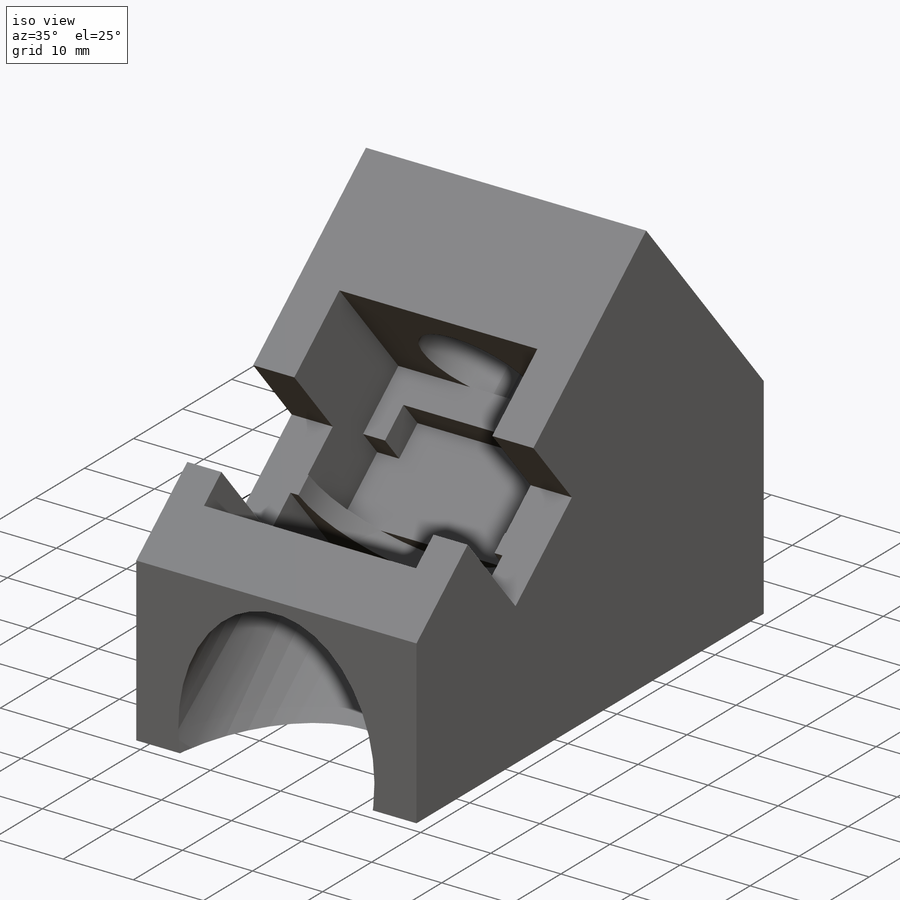
[diagram: iso view]
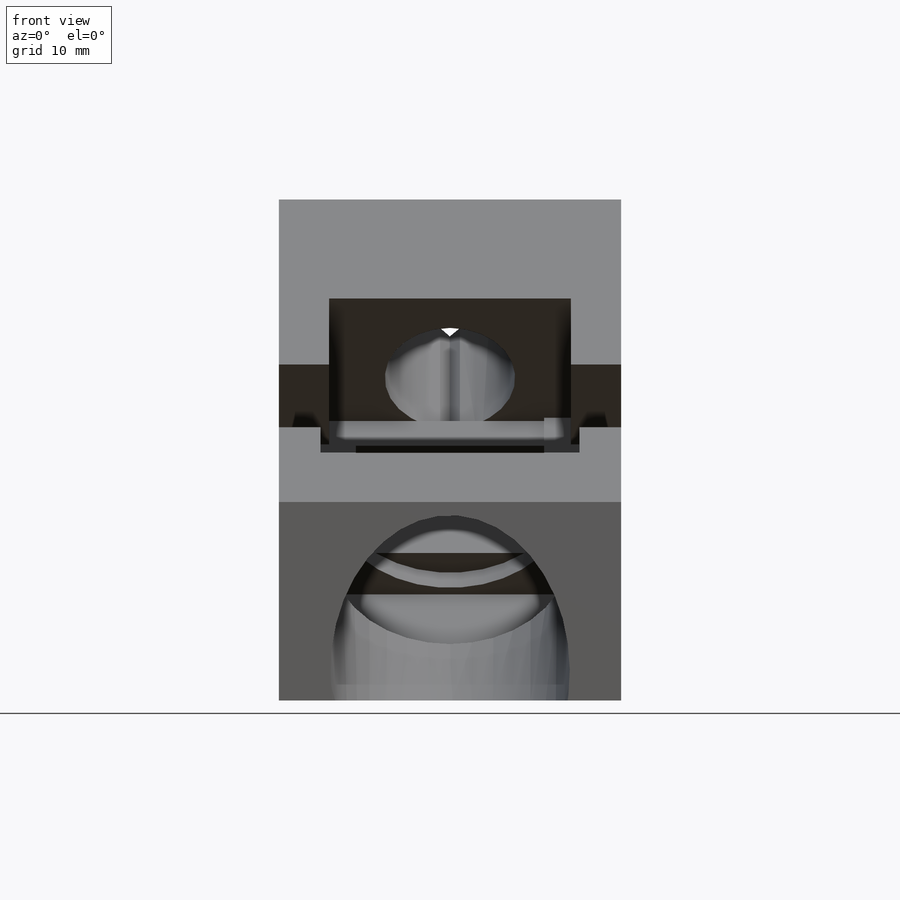
[diagram: front view]
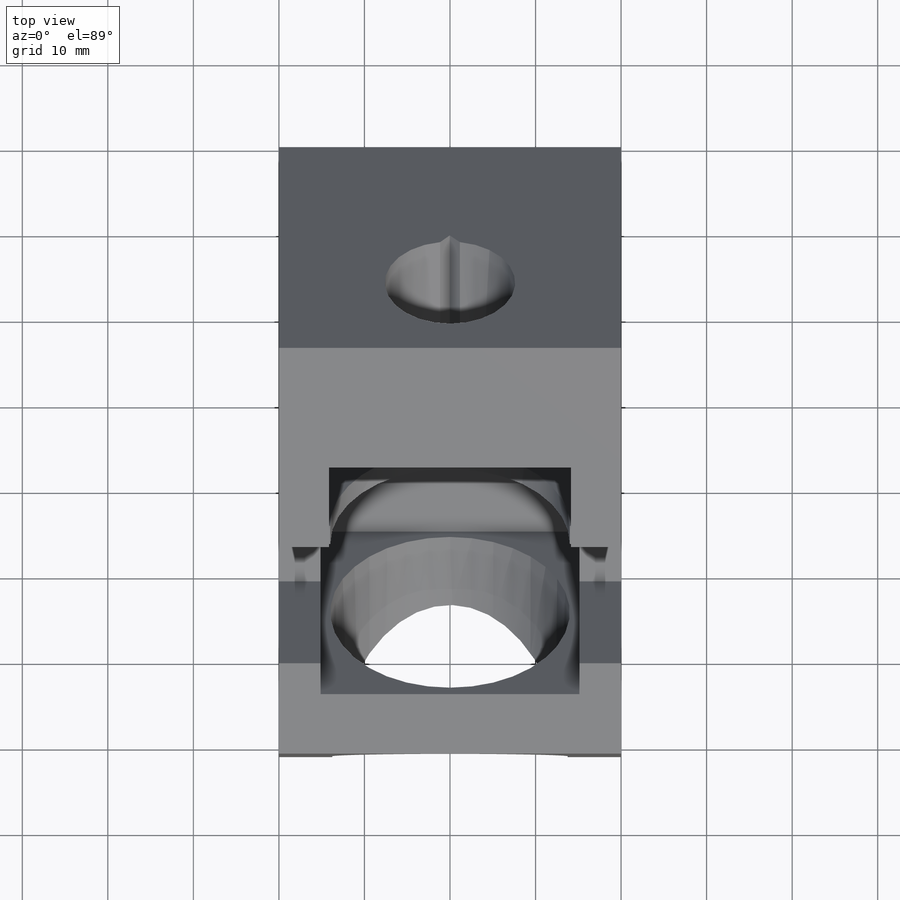
[diagram: top view]
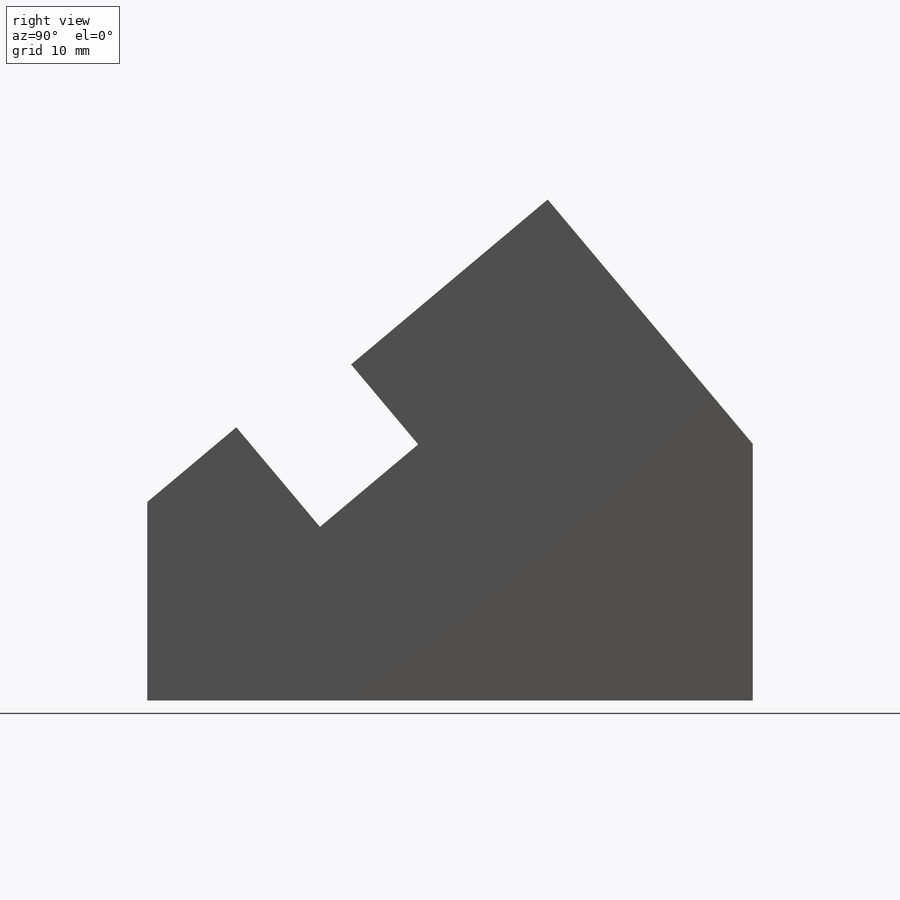
[diagram: right view]
SOLIDWORKS PART (.sldprt)
format: sldprt  version: not decoded by parser v0  size: 442,880 bytes
history: native  units: mm
features: sketch x21, cut_extrude x15, extrude x6, plane x3, material x1, chamfer x1 (+8 scaffold rows collapsed)
feature tree (55):
  scaffold x8  (default folders/planes/origin — collapsed)
  material  "Materiale <non specificato>"
  plane  "Piano frontale"
  plane  "Piano superiore"
  plane  "Piano destro"
  sketch  "Schizzo2"  dims[c1.D1=60.0mm c1.D2=~53.366806mm c2.D2=40.0deg c2.D3=~38.567257mm c3.D3=90.0deg c3.D4=20.0mm c3.D5=30.0mm c3.D6=~69.933441mm]
  extrude  "Estrusione-Estrusione1"  Depth=40mm
  sketch  "Schizzo3D1"  dims[D1=15.25mm D2=12.12mm]
  cut_extrude  "Taglio-Estrusione1"  Depth=18mm
  sketch  "Schizzo3D2"  dims[D1=~3.502918mm]
  cut_extrude  "Taglio-Estrusione2"  Depth=2mm
  chamfer  "Smusso1"  Distance=2mm Angle=45deg
  sketch  "Schizzo3D3"
  cut_extrude  "Taglio-Estrusione3"  Depth=10mm
  sketch  "Schizzo3D4"  dims[D1=36.4mm D2=18.4mm D3=28.0mm]
  cut_extrude  "Taglio-Estrusione4"  Depth=23.2mm
  sketch  "Schizzo3D5"  dims[D1=12.0mm D2=15.0mm]
  cut_extrude  "Taglio-Estrusione5"  Depth=12.2mm
  sketch  "Schizzo3D7"  dims[D1=10.25mm D2=30.25mm D3=3.0mm]
  cut_extrude  "Taglio-Estrusione6"  Depth=27.2mm
  sketch  "Schizzo3D10"  dims[c1.D1=30.0mm c1.D2=30.0mm c2.D1=15.0mm c3.D1=15.0mm c4.D1=15.0mm c5.D1=15.0mm c6.D1=15.0mm]
  cut_extrude  "Taglio-Estrusione8"  Depth=3mm
  cut_extrude  "Taglio-Estrusione9"  [1 undecoded]
  sketch  "Schizzo3D10<2>"  dims[D1=42.0mm]
  sketch  "Schizzo3D11"
  extrude  "Estrusione-Estrusione2"  Depth=3mm
  cut_extrude  "Taglio-Estrusione10"  [1 undecoded]
  sketch  "Schizzo3D10<3>"  dims[D1=47.0mm]
  sketch  "Schizzo3D12"
  extrude  "Estrusione-Estrusione3"  Depth=23.2mm
  sketch  "Schizzo3D13"
  cut_extrude  "Taglio-Estrusione11"  Depth=68mm
  cut_extrude  "Taglio-Estrusione12"  [1 undecoded]
  sketch  "Schizzo3D10<4>"  dims[D1=68.0mm]
  sketch  "Schizzo3D14"  dims[D1=4.5mm D2=3.0mm D3=3.0mm]
  extrude  "Estrusione-Estrusione4"  Depth=9.4mm
  sketch  "Schizzo3D15"  dims[D1=4.5mm]
  extrude  "Estrusione-Estrusione5"  Depth=4.5mm
  sketch  "Schizzo3D19"
  cut_extrude  "Taglio-Estrusione13"  Depth=18mm
  sketch  "Schizzo3"  dims[D1=0.25mm]
  cut_extrude  "Taglio-Estrusione14"  Depth=11mm
  sketch  "Schizzo4"
  extrude  "Estrusione-Estrusione6"  Depth=6mm
  sketch  "Schizzo5"
  cut_extrude  "Taglio-Estrusione15"  Depth=0.125mm
  sketch  "Schizzo6"
  cut_extrude  "Taglio-Estrusione16"  Depth=0.125mm
decode coverage: 32 of 43 modeling features carry decoded parameters
note: ~ marks probable driven/reference dimensions
note: 3 parameter values undecoded
summary: no parameter record found for 3 features
note: suppression state not decoded; provenance and decode notes live in map.json
